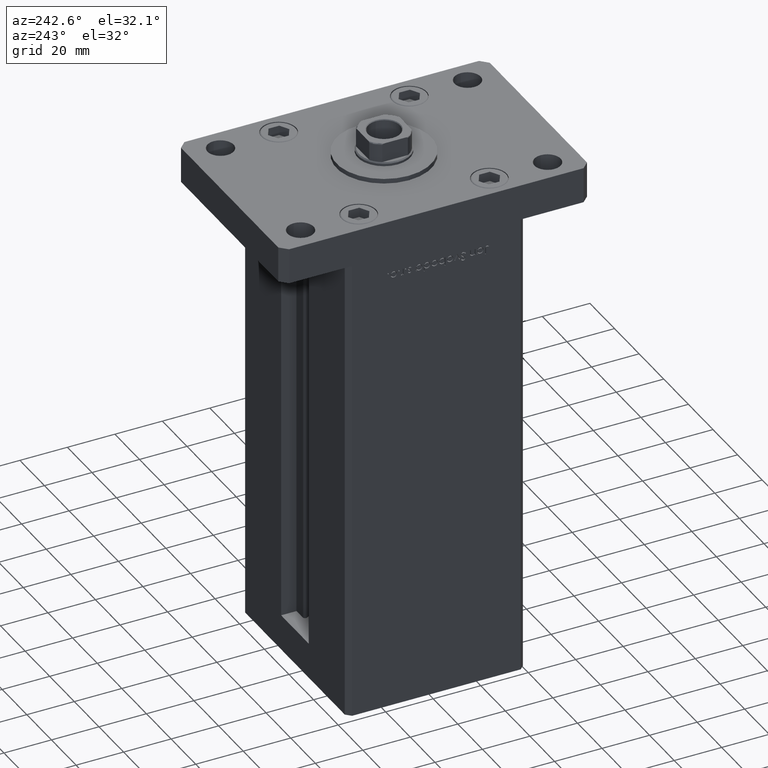
[diagram: clean part render]
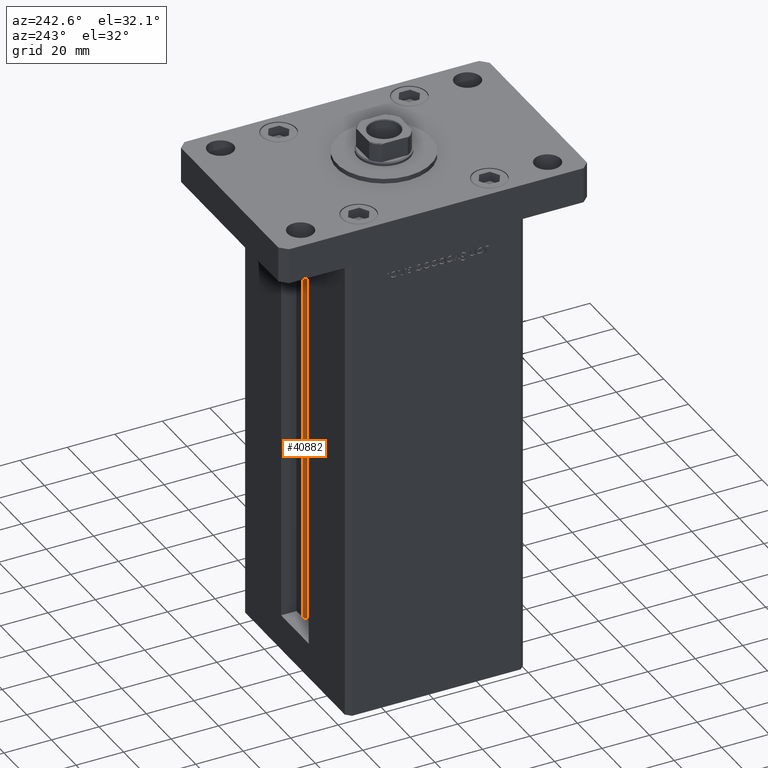
[diagram: same view with one face highlighted and labeled with its STEP entity id]
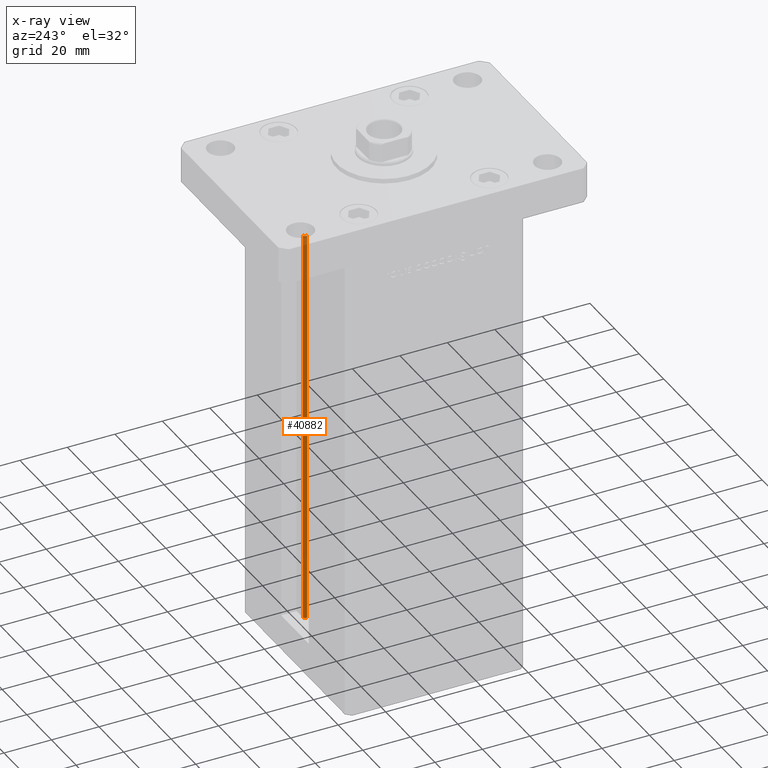
[diagram: x-ray of the same camera — body ghosted, the highlighted face saturated]
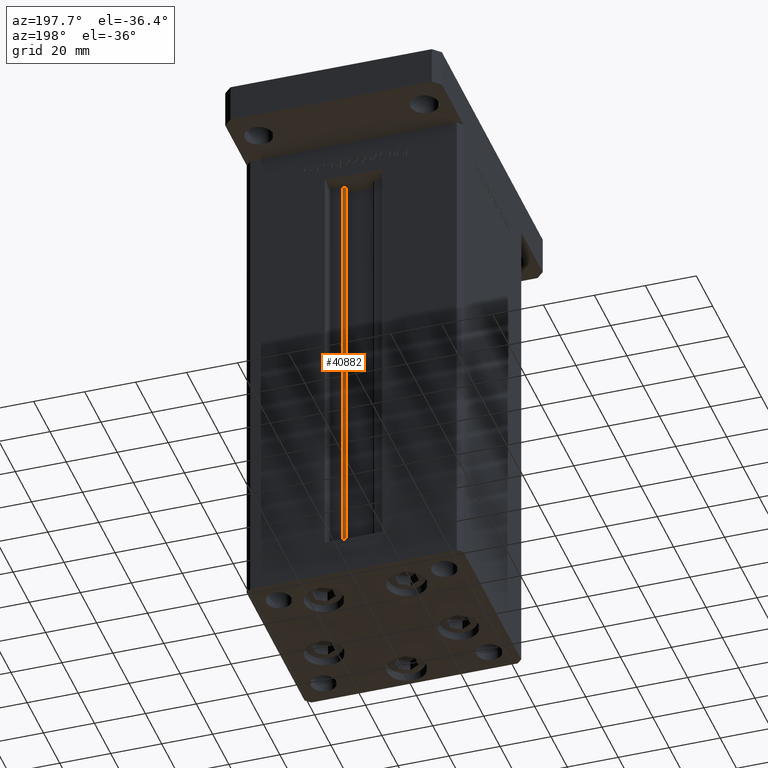
[diagram: same view with one face highlighted and labeled with its STEP entity id]
A machine part, auxiliary view. The second image highlights one B-rep face of the part: STEP entity #40882.
The next image is the same camera in x-ray: the body ghosted, the highlighted face saturated — about 11% of this face is hidden behind the body in this view.
A second angle (auxiliary view) of the same face is appended — the face is thin or edge-on in the first view.
In plain terms, the highlighted cylindrical surface (edge-blend (fillet) strip) has radius 0.9333 mm, axis along (0, 0, 1).
Its self-contained STEP definition (entity closure, byte-faithful):
#2718 = DIRECTION ( 'NONE',  ( 0.000000000000000000, 0.000000000000000000, -1.000000000000000000 ) ) ;
#4906 = DIRECTION ( 'NONE',  ( 1.000000000000000000, 0.000000000000000000, 0.000000000000000000 ) ) ;
#7859 = CARTESIAN_POINT ( 'NONE',  ( 6.183333333333999704, 30.99999999999999289, 0.000000000000000000 ) ) ;
#8179 = DIRECTION ( 'NONE',  ( 1.000000000000000000, 0.000000000000000000, 0.000000000000000000 ) ) ;
#8443 = CARTESIAN_POINT ( 'NONE',  ( 5.375042956467944499, 29.59999999999898890, 168.5000000000000000 ) ) ;
#10595 = VERTEX_POINT ( 'NONE', #36942 ) ;
#10604 = EDGE_LOOP ( 'NONE', ( #30729, #13919, #45126, #27432 ) ) ;
#11587 = DIRECTION ( 'NONE',  ( -0.000000000000000000, -0.000000000000000000, 1.000000000000000000 ) ) ;
#13579 = CARTESIAN_POINT ( 'NONE',  ( 6.183333333333999704, 30.06666666666599141, 0.000000000000000000 ) ) ;
#13919 = ORIENTED_EDGE ( 'NONE', *, *, #24833, .F. ) ;
#14049 = LINE ( 'NONE', #30591, #31387 ) ;
#14997 = EDGE_CURVE ( 'NONE', #43064, #10595, #38336, .T. ) ;
#17477 = DIRECTION ( 'NONE',  ( -0.000000000000000000, -0.000000000000000000, 1.000000000000000000 ) ) ;
#19284 = DIRECTION ( 'NONE',  ( 1.000000000000000000, 0.000000000000000000, 0.000000000000000000 ) ) ;
#20351 = VERTEX_POINT ( 'NONE', #8443 ) ;
#21196 = DIRECTION ( 'NONE',  ( -0.000000000000000000, -0.000000000000000000, -1.000000000000000000 ) ) ;
#22562 = EDGE_CURVE ( 'NONE', #20351, #10595, #35230, .T. ) ;
#24079 = VERTEX_POINT ( 'NONE', #38496 ) ;
#24418 = AXIS2_PLACEMENT_3D ( 'NONE', #36396, #28808, #8179 ) ;
#24730 = FACE_OUTER_BOUND ( 'NONE', #10604, .T. ) ;
#24833 = EDGE_CURVE ( 'NONE', #24079, #43064, #41334, .T. ) ;
#27432 = ORIENTED_EDGE ( 'NONE', *, *, #22562, .T. ) ;
#28337 = AXIS2_PLACEMENT_3D ( 'NONE', #13579, #21196, #4906 ) ;
#28808 = DIRECTION ( 'NONE',  ( -0.000000000000000000, -0.000000000000000000, 1.000000000000000000 ) ) ;
#30591 = CARTESIAN_POINT ( 'NONE',  ( 5.375042956467943611, 29.59999999999899245, 0.000000000000000000 ) ) ;
#30729 = ORIENTED_EDGE ( 'NONE', *, *, #14997, .F. ) ;
#31387 = VECTOR ( 'NONE', #11587, 1000.000000000000000 ) ;
#34375 = VECTOR ( 'NONE', #17477, 1000.000000000000000 ) ;
#34733 = CARTESIAN_POINT ( 'NONE',  ( 6.183333333333999704, 30.06666666666599141, 168.5000000000000000 ) ) ;
#35230 = CIRCLE ( 'NONE', #37801, 0.9333333333340015914 ) ;
#36396 = CARTESIAN_POINT ( 'NONE',  ( 6.183333333333999704, 30.06666666666599141, 0.000000000000000000 ) ) ;
#36942 = CARTESIAN_POINT ( 'NONE',  ( 6.183333333333999704, 30.99999999999999289, 168.5000000000000000 ) ) ;
#37801 = AXIS2_PLACEMENT_3D ( 'NONE', #34733, #2718, #19284 ) ;
#38336 = LINE ( 'NONE', #50809, #34375 ) ;
#38496 = CARTESIAN_POINT ( 'NONE',  ( 5.375042956467943611, 29.59999999999899245, 0.000000000000000000 ) ) ;
#40882 = ADVANCED_FACE ( 'NONE', ( #24730 ), #49924, .T. ) ;
#41334 = CIRCLE ( 'NONE', #28337, 0.9333333333340015914 ) ;
#43064 = VERTEX_POINT ( 'NONE', #7859 ) ;
#45126 = ORIENTED_EDGE ( 'NONE', *, *, #48034, .T. ) ;
#48034 = EDGE_CURVE ( 'NONE', #24079, #20351, #14049, .T. ) ;
#49924 = CYLINDRICAL_SURFACE ( 'NONE', #24418, 0.9333333333340015914 ) ;
#50809 = CARTESIAN_POINT ( 'NONE',  ( 6.183333333333999704, 30.99999999999999289, 0.000000000000000000 ) ) ;